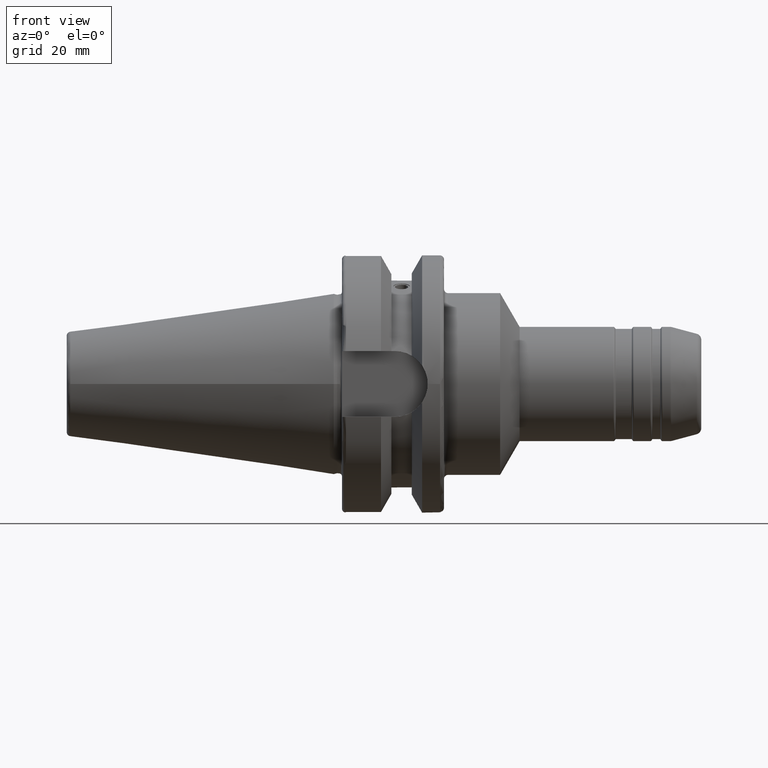
[diagram: clean part render]
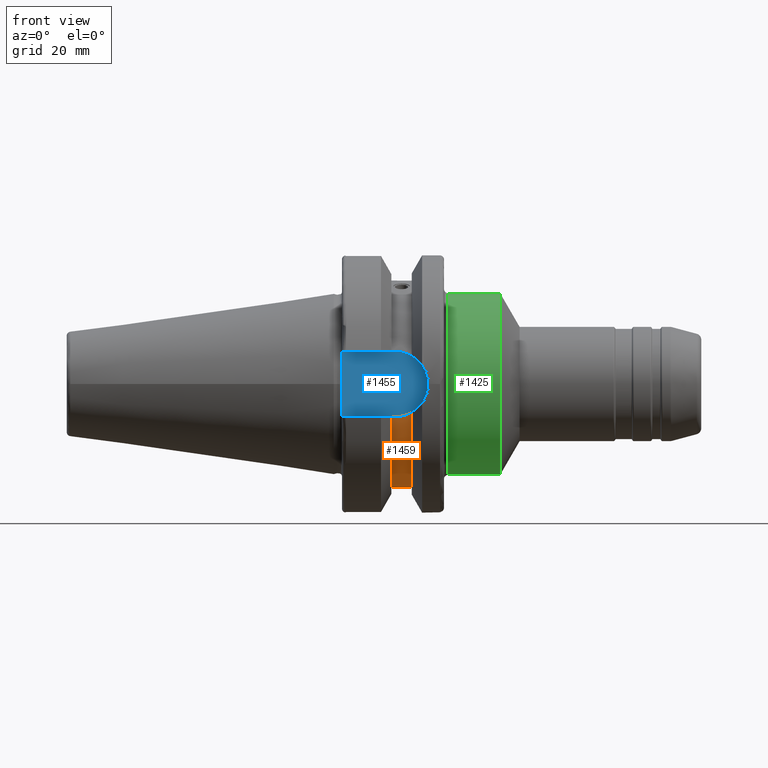
[diagram: same view with three faces highlighted in distinct colors, each labeled with its STEP entity id]
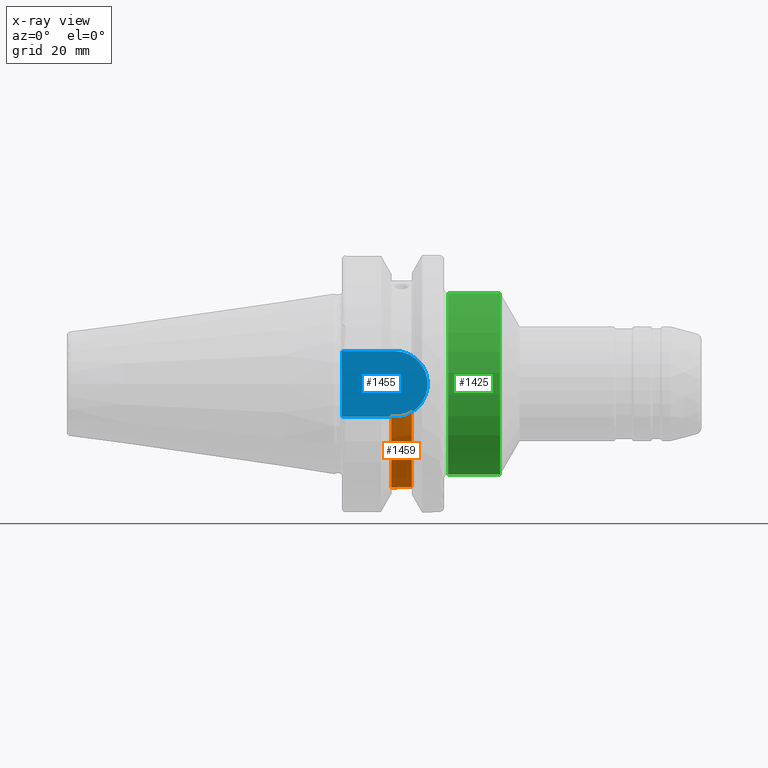
[diagram: x-ray of the same camera — body ghosted, the three highlighted faces saturated]
A machine part, front view with three faces highlighted in distinct colors.
The next image is the same camera in x-ray (body ghosted, the three faces saturated) — at least one of them is partly hidden behind the body in this view.
Their STEP definitions:

[orange] entity #1459 — the highlighted cylindrical surface (partial cylindrical patch) has radius 25.5 mm, axis along (1, 0, 0).
#84=FACE_BOUND('',#311,.T.);
#99=B_SPLINE_CURVE_WITH_KNOTS('',3,(#2542,#2543,#2544,#2545,#2546,#2547,
#2548,#2549,#2550,#2551,#2552,#2553,#2554,#2555,#2556,#2557,#2558,#2559,
#2560,#2561,#2562,#2563,#2564,#2565,#2566,#2567),.UNSPECIFIED.,.F.,.F.,
(4,2,2,2,2,2,2,2,2,2,2,2,4),(0.,0.0753706034311402,0.15074120686228,0.226111713565585,
0.301482220268889,0.376852726972193,0.452223233675497,0.527593837106637,
0.602964440537777,0.678335043968917,0.753705647400058,0.829076154103362,
0.904446660806666),.UNSPECIFIED.);
#100=B_SPLINE_CURVE_WITH_KNOTS('',3,(#2568,#2569,#2570,#2571,#2572,#2573,
#2574,#2575,#2576,#2577),.UNSPECIFIED.,.F.,.F.,(4,2,2,2,4),(0.904446660806666,
0.97981716750997,1.05518767421327,1.13055827764441,1.20592888107555),
 .UNSPECIFIED.);
#101=B_SPLINE_CURVE_WITH_KNOTS('',3,(#2603,#2604,#2605,#2606,#2607,#2608),
 .UNSPECIFIED.,.F.,.F.,(4,2,4),(2.02525951614585,2.13846497015446,2.44402436414645),
 .UNSPECIFIED.);
#111=B_SPLINE_CURVE_WITH_KNOTS('',3,(#2743,#2744,#2745,#2746,#2747,#2748),
 .UNSPECIFIED.,.F.,.F.,(4,2,4),(2.44402436414645,2.74958375813844,2.86278921214705),
 .UNSPECIFIED.);
#142=CYLINDRICAL_SURFACE('',#1657,25.5);
#211=FACE_OUTER_BOUND('',#310,.T.);
#310=EDGE_LOOP('',(#1232,#1233,#1234,#1235,#1236,#1237));
#311=EDGE_LOOP('',(#1238,#1239));
#391=LINE('',#2680,#464);
#399=LINE('',#2742,#472);
#464=VECTOR('',#2036,10.);
#472=VECTOR('',#2068,10.);
#558=CIRCLE('',#1656,25.5);
#559=CIRCLE('',#1658,25.5);
#657=VERTEX_POINT('',#2539);
#658=VERTEX_POINT('',#2541);
#665=VERTEX_POINT('',#2601);
#666=VERTEX_POINT('',#2602);
#682=VERTEX_POINT('',#2679);
#693=VERTEX_POINT('',#2735);
#694=VERTEX_POINT('',#2739);
#695=VERTEX_POINT('',#2741);
#838=EDGE_CURVE('',#658,#657,#99,.T.);
#839=EDGE_CURVE('',#657,#658,#100,.T.);
#850=EDGE_CURVE('',#665,#666,#101,.T.);
#868=EDGE_CURVE('',#666,#682,#391,.T.);
#884=EDGE_CURVE('',#665,#693,#558,.T.);
#886=EDGE_CURVE('',#682,#694,#559,.T.);
#887=EDGE_CURVE('',#694,#695,#399,.T.);
#888=EDGE_CURVE('',#695,#693,#111,.T.);
#1232=ORIENTED_EDGE('',*,*,#850,.T.);
#1233=ORIENTED_EDGE('',*,*,#868,.T.);
#1234=ORIENTED_EDGE('',*,*,#886,.T.);
#1235=ORIENTED_EDGE('',*,*,#887,.T.);
#1236=ORIENTED_EDGE('',*,*,#888,.T.);
#1237=ORIENTED_EDGE('',*,*,#884,.F.);
#1238=ORIENTED_EDGE('',*,*,#838,.T.);
#1239=ORIENTED_EDGE('',*,*,#839,.T.);
#1459=ADVANCED_FACE('',(#211,#84),#142,.T.);
#1656=AXIS2_PLACEMENT_3D('',#2736,#2061,#2062);
#1657=AXIS2_PLACEMENT_3D('',#2738,#2064,#2065);
#1658=AXIS2_PLACEMENT_3D('',#2740,#2066,#2067);
#2036=DIRECTION('',(-1.,0.,0.));
#2061=DIRECTION('center_axis',(1.,0.,0.));
#2062=DIRECTION('ref_axis',(0.,0.,-1.));
#2064=DIRECTION('center_axis',(1.,0.,0.));
#2065=DIRECTION('ref_axis',(0.,1.,0.));
#2066=DIRECTION('center_axis',(1.,0.,0.));
#2067=DIRECTION('ref_axis',(0.,0.,-1.));
#2068=DIRECTION('',(1.,0.,0.));
#2539=CARTESIAN_POINT('',(18.6,8.72151365480455,-23.9621618300407));
#2541=CARTESIAN_POINT('',(16.6,10.5740324061887,-23.2043064682587));
#2542=CARTESIAN_POINT('Ctrl Pts',(16.6,10.5740324061887,-23.2043064682587));
#2543=CARTESIAN_POINT('Ctrl Pts',(16.3487646552295,10.5740324061887,-23.2043064682587));
#2544=CARTESIAN_POINT('Ctrl Pts',(16.0808539398032,10.5282360748462,-23.2253464640325));
#2545=CARTESIAN_POINT('Ctrl Pts',(15.5881259002915,10.341480204317,-23.3091025219309));
#2546=CARTESIAN_POINT('Ctrl Pts',(15.3632997889944,10.2004525041704,-23.3716147691749));
#2547=CARTESIAN_POINT('Ctrl Pts',(15.0082733140735,9.87358134491179,-23.5115716095889));
#2548=CARTESIAN_POINT('Ctrl Pts',(14.8543700008966,9.66590292532593,-23.5983277097944));
#2549=CARTESIAN_POINT('Ctrl Pts',(14.6502304925719,9.20795105223416,-23.78075666331));
#2550=CARTESIAN_POINT('Ctrl Pts',(14.6,8.95759735138452,-23.87623439169));
#2551=CARTESIAN_POINT('Ctrl Pts',(14.6,8.48542995822459,-24.0480892683913));
#2552=CARTESIAN_POINT('Ctrl Pts',(14.6502304925719,8.23227599607073,-24.1358733420695));
#2553=CARTESIAN_POINT('Ctrl Pts',(14.8543700008966,7.76420143750494,-24.290490445821));
#2554=CARTESIAN_POINT('Ctrl Pts',(15.0082733140735,7.54934479194869,-24.357524532261));
#2555=CARTESIAN_POINT('Ctrl Pts',(15.3632997889944,7.20898443387373,-24.4604201035206));
#2556=CARTESIAN_POINT('Ctrl Pts',(15.5881259002915,7.0607688498685,-24.5031838021693));
#2557=CARTESIAN_POINT('Ctrl Pts',(16.0808539398032,6.86386819677648,-24.5590672990511));
#2558=CARTESIAN_POINT('Ctrl Pts',(16.3487646552295,6.81526192304506,-24.5723870415614));
#2559=CARTESIAN_POINT('Ctrl Pts',(16.8512353447705,6.81526192304506,-24.5723870415614));
#2560=CARTESIAN_POINT('Ctrl Pts',(17.1191460601968,6.86386819677648,-24.5590672990511));
#2561=CARTESIAN_POINT('Ctrl Pts',(17.6118740997085,7.0607688498685,-24.5031838021693));
#2562=CARTESIAN_POINT('Ctrl Pts',(17.8367002110056,7.20898443387373,-24.4604201035206));
#2563=CARTESIAN_POINT('Ctrl Pts',(18.1917266859265,7.54934479194869,-24.357524532261));
#2564=CARTESIAN_POINT('Ctrl Pts',(18.3456299991034,7.76420143750494,-24.290490445821));
#2565=CARTESIAN_POINT('Ctrl Pts',(18.5497695074281,8.23227599607073,-24.1358733420695));
#2566=CARTESIAN_POINT('Ctrl Pts',(18.6,8.48542995822459,-24.0480892683913));
#2567=CARTESIAN_POINT('Ctrl Pts',(18.6,8.72151365480455,-23.9621618300407));
#2568=CARTESIAN_POINT('Ctrl Pts',(18.6,8.72151365480455,-23.9621618300407));
#2569=CARTESIAN_POINT('Ctrl Pts',(18.6,8.95759735138452,-23.87623439169));
#2570=CARTESIAN_POINT('Ctrl Pts',(18.5497695074281,9.20795105223416,-23.78075666331));
#2571=CARTESIAN_POINT('Ctrl Pts',(18.3456299991034,9.66590292532593,-23.5983277097944));
#2572=CARTESIAN_POINT('Ctrl Pts',(18.1917266859265,9.87358134491179,-23.5115716095889));
#2573=CARTESIAN_POINT('Ctrl Pts',(17.8367002110056,10.2004525041704,-23.3716147691749));
#2574=CARTESIAN_POINT('Ctrl Pts',(17.6118740997085,10.341480204317,-23.3091025219309));
#2575=CARTESIAN_POINT('Ctrl Pts',(17.1191460601968,10.5282360748462,-23.2253464640325));
#2576=CARTESIAN_POINT('Ctrl Pts',(16.8512353447705,10.5740324061887,-23.2043064682587));
#2577=CARTESIAN_POINT('Ctrl Pts',(16.6,10.5740324061887,-23.2043064682587));
#2601=CARTESIAN_POINT('',(19.1,-24.5493380766162,-6.89782574439221));
#2602=CARTESIAN_POINT('',(14.95,-24.1960224003864,-8.05));
#2603=CARTESIAN_POINT('Ctrl Pts',(19.1,-24.5493380766162,-6.89782574439221));
#2604=CARTESIAN_POINT('Ctrl Pts',(18.7625417379862,-24.492291659194,-7.10085374759973));
#2605=CARTESIAN_POINT('Ctrl Pts',(18.4072379028184,-24.4390565244262,-7.28065599998141));
#2606=CARTESIAN_POINT('Ctrl Pts',(17.0497516664971,-24.2670783971366,-7.84501312719341));
#2607=CARTESIAN_POINT('Ctrl Pts',(15.9685313133066,-24.1960224003864,-8.05));
#2608=CARTESIAN_POINT('Ctrl Pts',(14.95,-24.1960224003864,-8.05));
#2679=CARTESIAN_POINT('',(14.1,-24.1960224003864,-8.05));
#2680=CARTESIAN_POINT('',(16.6,-24.1960224003864,-8.05));
#2735=CARTESIAN_POINT('',(19.1,24.5493380766162,-6.89782574439221));
#2736=CARTESIAN_POINT('Origin',(19.1,0.,0.));
#2738=CARTESIAN_POINT('Origin',(16.6,0.,0.));
#2739=CARTESIAN_POINT('',(14.1,24.1960224003864,-8.05));
#2740=CARTESIAN_POINT('Origin',(14.1,0.,0.));
#2741=CARTESIAN_POINT('',(14.95,24.1960224003864,-8.05));
#2742=CARTESIAN_POINT('',(16.6,24.1960224003864,-8.05));
#2743=CARTESIAN_POINT('Ctrl Pts',(14.95,24.1960224003864,-8.05));
#2744=CARTESIAN_POINT('Ctrl Pts',(15.9685313133066,24.1960224003864,-8.05));
#2745=CARTESIAN_POINT('Ctrl Pts',(17.0497516664971,24.2670783971366,-7.84501312719341));
#2746=CARTESIAN_POINT('Ctrl Pts',(18.4072379028184,24.4390565244262,-7.28065599998141));
#2747=CARTESIAN_POINT('Ctrl Pts',(18.7625417379862,24.492291659194,-7.10085374759973));
#2748=CARTESIAN_POINT('Ctrl Pts',(19.1,24.5493380766162,-6.89782574439221));

[blue] entity #1455 — the highlighted planar face has unit normal (0, 1, 0).
#47=PLANE('',#1647);
#207=FACE_OUTER_BOUND('',#306,.T.);
#306=EDGE_LOOP('',(#1211,#1212,#1213,#1214));
#390=LINE('',#2677,#463);
#392=LINE('',#2682,#465);
#396=LINE('',#2704,#469);
#463=VECTOR('',#2033,10.);
#465=VECTOR('',#2037,10.);
#469=VECTOR('',#2043,10.);
#552=CIRCLE('',#1644,8.05);
#674=VERTEX_POINT('',#2648);
#675=VERTEX_POINT('',#2650);
#681=VERTEX_POINT('',#2675);
#683=VERTEX_POINT('',#2681);
#859=EDGE_CURVE('',#674,#675,#552,.T.);
#867=EDGE_CURVE('',#681,#674,#390,.T.);
#869=EDGE_CURVE('',#675,#683,#392,.T.);
#875=EDGE_CURVE('',#683,#681,#396,.T.);
#1211=ORIENTED_EDGE('',*,*,#869,.F.);
#1212=ORIENTED_EDGE('',*,*,#859,.F.);
#1213=ORIENTED_EDGE('',*,*,#867,.F.);
#1214=ORIENTED_EDGE('',*,*,#875,.F.);
#1455=ADVANCED_FACE('',(#207),#47,.F.);
#1644=AXIS2_PLACEMENT_3D('',#2651,#2024,#2025);
#1647=AXIS2_PLACEMENT_3D('',#2703,#2041,#2042);
#2024=DIRECTION('center_axis',(0.,1.,0.));
#2025=DIRECTION('ref_axis',(0.,0.,1.));
#2033=DIRECTION('',(1.,0.,8.57315076930623E-17));
#2037=DIRECTION('',(-1.,0.,-8.57315076930623E-17));
#2041=DIRECTION('center_axis',(0.,1.,0.));
#2042=DIRECTION('ref_axis',(0.,0.,1.));
#2043=DIRECTION('',(0.,0.,1.));
#2648=CARTESIAN_POINT('',(14.95,-22.6,8.05));
#2650=CARTESIAN_POINT('',(14.95,-22.6,-8.05));
#2651=CARTESIAN_POINT('Origin',(14.95,-22.6,0.));
#2675=CARTESIAN_POINT('',(1.99999999999999,-22.6,8.05));
#2677=CARTESIAN_POINT('',(1.99999999999999,-22.6,8.05));
#2681=CARTESIAN_POINT('',(1.99999999999999,-22.6,-8.05));
#2682=CARTESIAN_POINT('',(14.95,-22.6,-8.05));
#2703=CARTESIAN_POINT('Origin',(12.5,-22.6,0.));
#2704=CARTESIAN_POINT('',(1.99999999999999,-22.6,0.));

[green] entity #1425 — the highlighted cylindrical surface (bore or boss wall) has radius 22.25 mm, axis along (1, 0, 0).
#124=CYLINDRICAL_SURFACE('',#1581,22.25);
#177=FACE_OUTER_BOUND('',#269,.T.);
#269=EDGE_LOOP('',(#1061,#1062,#1063,#1064,#1065));
#362=LINE('',#2412,#435);
#435=VECTOR('',#1879,22.25);
#531=CIRCLE('',#1577,22.25);
#532=CIRCLE('',#1578,22.25);
#535=CIRCLE('',#1582,22.25);
#625=VERTEX_POINT('',#2402);
#626=VERTEX_POINT('',#2403);
#628=VERTEX_POINT('',#2410);
#787=EDGE_CURVE('',#625,#626,#531,.T.);
#788=EDGE_CURVE('',#626,#625,#532,.T.);
#791=EDGE_CURVE('',#628,#628,#535,.T.);
#792=EDGE_CURVE('',#628,#626,#362,.T.);
#1061=ORIENTED_EDGE('',*,*,#791,.F.);
#1062=ORIENTED_EDGE('',*,*,#792,.T.);
#1063=ORIENTED_EDGE('',*,*,#787,.F.);
#1064=ORIENTED_EDGE('',*,*,#788,.F.);
#1065=ORIENTED_EDGE('',*,*,#792,.F.);
#1425=ADVANCED_FACE('',(#177),#124,.T.);
#1577=AXIS2_PLACEMENT_3D('',#2404,#1867,#1868);
#1578=AXIS2_PLACEMENT_3D('',#2405,#1869,#1870);
#1581=AXIS2_PLACEMENT_3D('',#2409,#1875,#1876);
#1582=AXIS2_PLACEMENT_3D('',#2411,#1877,#1878);
#1867=DIRECTION('center_axis',(-1.,0.,0.));
#1868=DIRECTION('ref_axis',(0.,-1.22464679914735E-16,1.));
#1869=DIRECTION('center_axis',(-1.,0.,0.));
#1870=DIRECTION('ref_axis',(0.,-1.22464679914735E-16,1.));
#1875=DIRECTION('center_axis',(1.,0.,0.));
#1876=DIRECTION('ref_axis',(0.,0.,-1.));
#1877=DIRECTION('center_axis',(1.,0.,0.));
#1878=DIRECTION('ref_axis',(0.,0.,-1.));
#1879=DIRECTION('',(-1.,0.,0.));
#2402=CARTESIAN_POINT('',(28.,0.,-22.25));
#2403=CARTESIAN_POINT('',(28.,-2.72483912810286E-15,22.25));
#2404=CARTESIAN_POINT('Origin',(28.,0.,0.));
#2405=CARTESIAN_POINT('Origin',(28.,0.,0.));
#2409=CARTESIAN_POINT('Origin',(33.8684301395928,0.,0.));
#2410=CARTESIAN_POINT('',(40.7368602791856,-2.72483912810286E-15,22.25));
#2411=CARTESIAN_POINT('Origin',(40.7368602791856,0.,0.));
#2412=CARTESIAN_POINT('',(33.8684301395928,-2.72483912810286E-15,22.25));